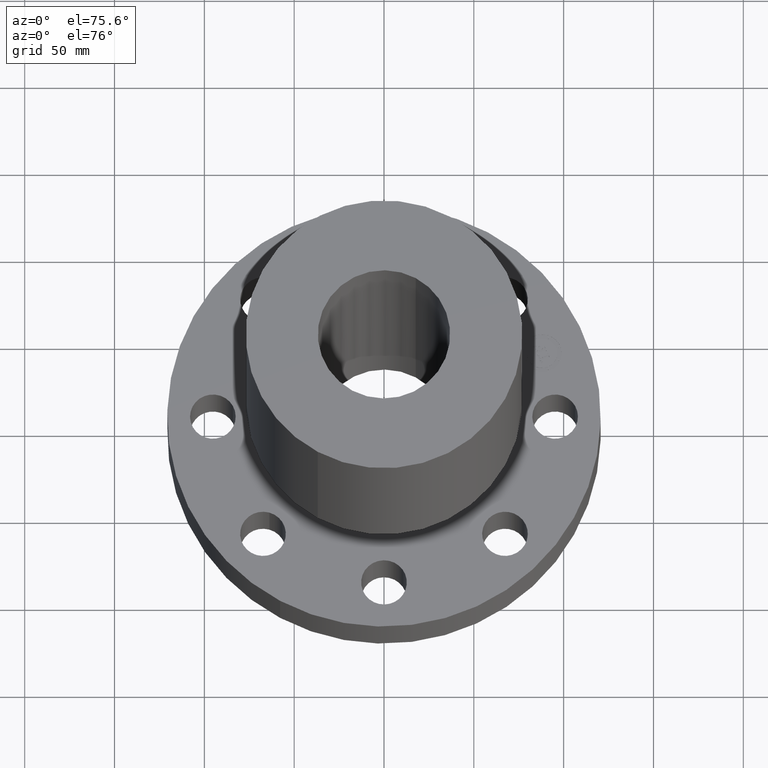
[diagram: clean part render]
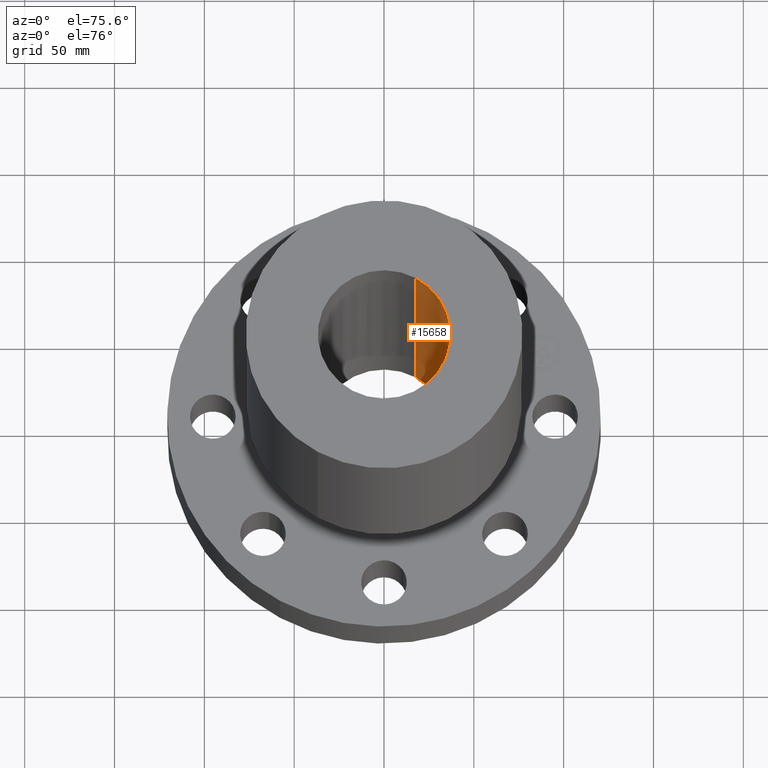
[diagram: same view with one face highlighted and labeled with its STEP entity id]
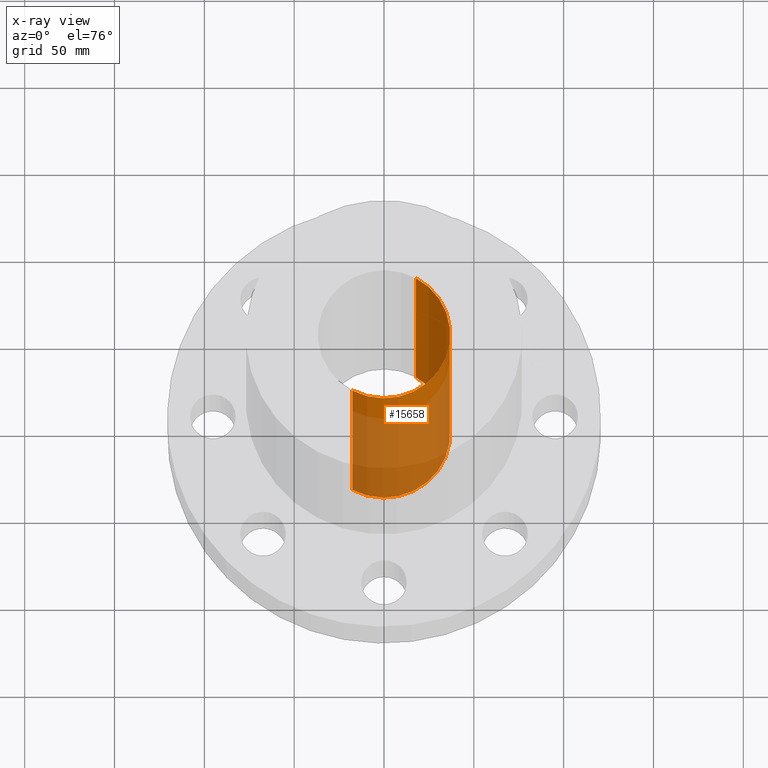
[diagram: x-ray of the same camera — body ghosted, the highlighted face saturated]
A machine part, auxiliary view. The second image highlights one B-rep face of the part: STEP entity #15658.
The next image is the same camera in x-ray: the body ghosted, the highlighted face saturated — about 63% of this face is hidden behind the body in this view.
In plain terms, the highlighted cylindrical surface (partial cylindrical patch) has radius 36.83 mm, axis along (0, 0, -1).
Its self-contained STEP definition (entity closure, byte-faithful):
#15202=AXIS2_PLACEMENT_3D('Circle Axis2P3D',#15200,#15201,$) ;
#15631=AXIS2_PLACEMENT_3D('Cylinder Axis2P3D',#15628,#15629,#15630) ;
#15635=AXIS2_PLACEMENT_3D('Circle Axis2P3D',#15633,#15634,$) ;
#15195=CARTESIAN_POINT('Vertex',(-0.695167030979,-1.27249471475,8.75000000004)) ;
#15197=CARTESIAN_POINT('Vertex',(0.695167030979,1.27249471475,8.75000000004)) ;
#15200=CARTESIAN_POINT('Axis2P3D Location',(0.,0.,8.75000000003)) ;
#15628=CARTESIAN_POINT('Axis2P3D Location',(0.,0.,4.25000000002)) ;
#15633=CARTESIAN_POINT('Axis2P3D Location',(0.,0.,0.)) ;
#15637=CARTESIAN_POINT('Vertex',(-0.695167030979,-1.27249471475,0.)) ;
#15639=CARTESIAN_POINT('Vertex',(0.695167030979,1.27249471475,0.)) ;
#15642=CARTESIAN_POINT('Line Origine',(-0.695167030979,-1.27249471475,4.37500000002)) ;
#15647=CARTESIAN_POINT('Line Origine',(0.695167030979,1.27249471475,4.37500000002)) ;
#15201=DIRECTION('Axis2P3D Direction',(0.,0.,-0.0393700787402)) ;
#15629=DIRECTION('Axis2P3D Direction',(0.,0.,-0.0393700787402)) ;
#15630=DIRECTION('Axis2P3D XDirection',(-0.0188750212049,-0.0345504945626,0.)) ;
#15634=DIRECTION('Axis2P3D Direction',(0.,0.,-0.0393700787402)) ;
#15643=DIRECTION('Vector Direction',(0.,0.,-0.0393700787402)) ;
#15648=DIRECTION('Vector Direction',(0.,0.,-0.0393700787402)) ;
#15644=VECTOR('Line Direction',#15643,0.0393700787402) ;
#15649=VECTOR('Line Direction',#15648,0.0393700787402) ;
#15653=ORIENTED_EDGE('',*,*,#15641,.F.) ;
#15654=ORIENTED_EDGE('',*,*,#15646,.F.) ;
#15655=ORIENTED_EDGE('',*,*,#15204,.F.) ;
#15656=ORIENTED_EDGE('',*,*,#15651,.T.) ;
#15658=ADVANCED_FACE('PartBody',(#15657),#15632,.F.) ;
#15203=CIRCLE('generated circle',#15202,1.45000000001) ;
#15636=CIRCLE('generated circle',#15635,1.45000000001) ;
#15632=CYLINDRICAL_SURFACE('generated cylinder',#15631,1.45000000001) ;
#15204=EDGE_CURVE('',#15198,#15196,#15203,.T.) ;
#15641=EDGE_CURVE('',#15638,#15640,#15636,.F.) ;
#15646=EDGE_CURVE('',#15196,#15638,#15645,.T.) ;
#15651=EDGE_CURVE('',#15198,#15640,#15650,.T.) ;
#15652=EDGE_LOOP('',(#15653,#15654,#15655,#15656)) ;
#15657=FACE_OUTER_BOUND('',#15652,.T.) ;
#15645=LINE('Line',#15642,#15644) ;
#15650=LINE('Line',#15647,#15649) ;
#15196=VERTEX_POINT('',#15195) ;
#15198=VERTEX_POINT('',#15197) ;
#15638=VERTEX_POINT('',#15637) ;
#15640=VERTEX_POINT('',#15639) ;